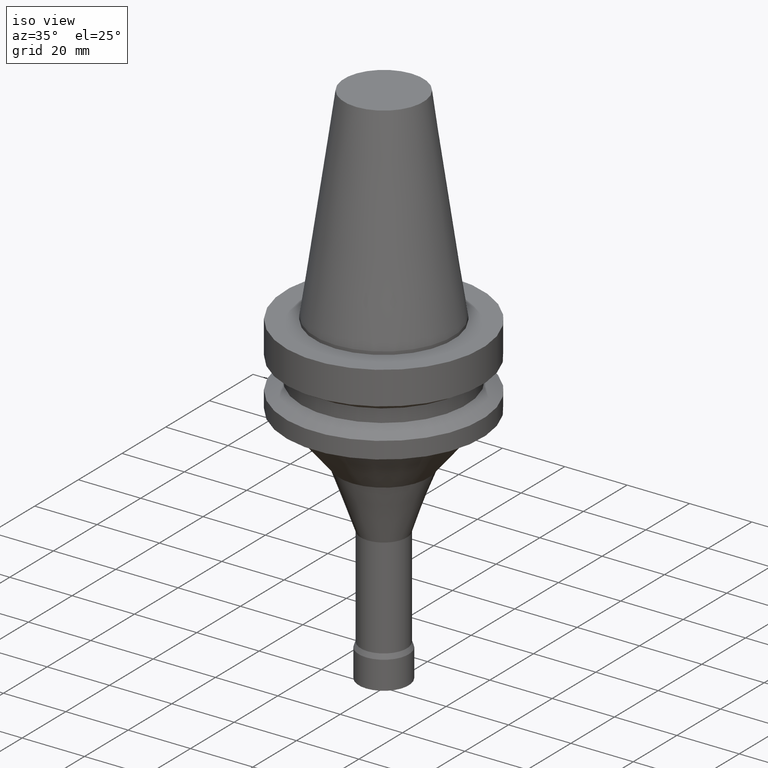
[diagram: clean part render]
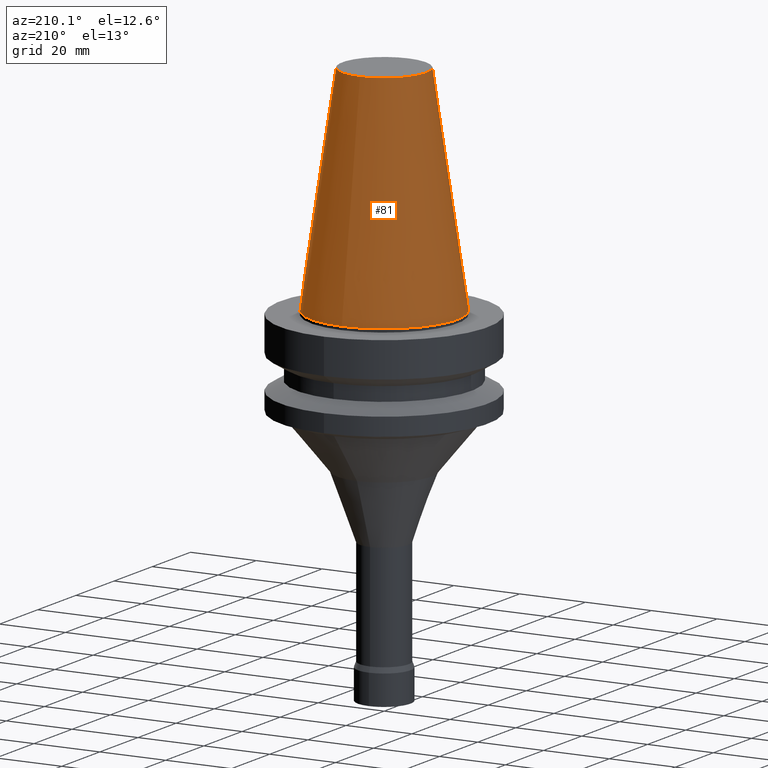
[diagram: tour spotlight — one face highlighted and labeled with its STEP entity id]
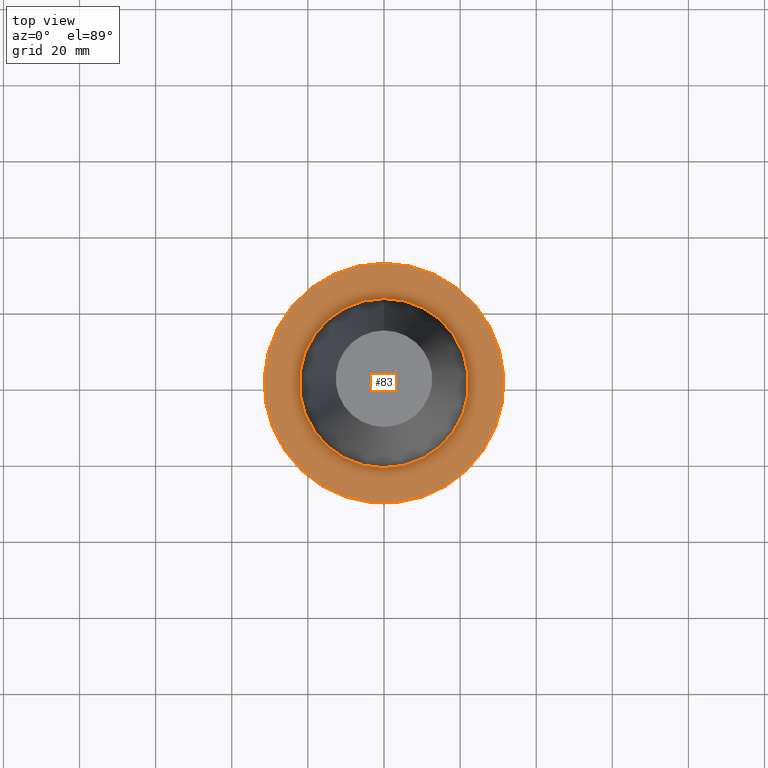
[diagram: tour spotlight — one face highlighted and labeled with its STEP entity id]
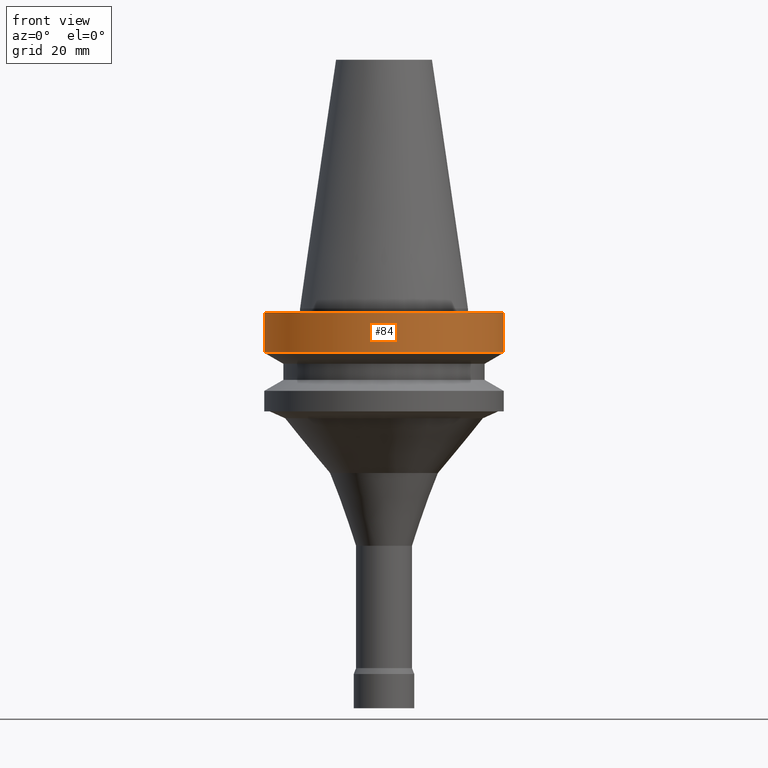
[diagram: tour spotlight — one face highlighted and labeled with its STEP entity id]
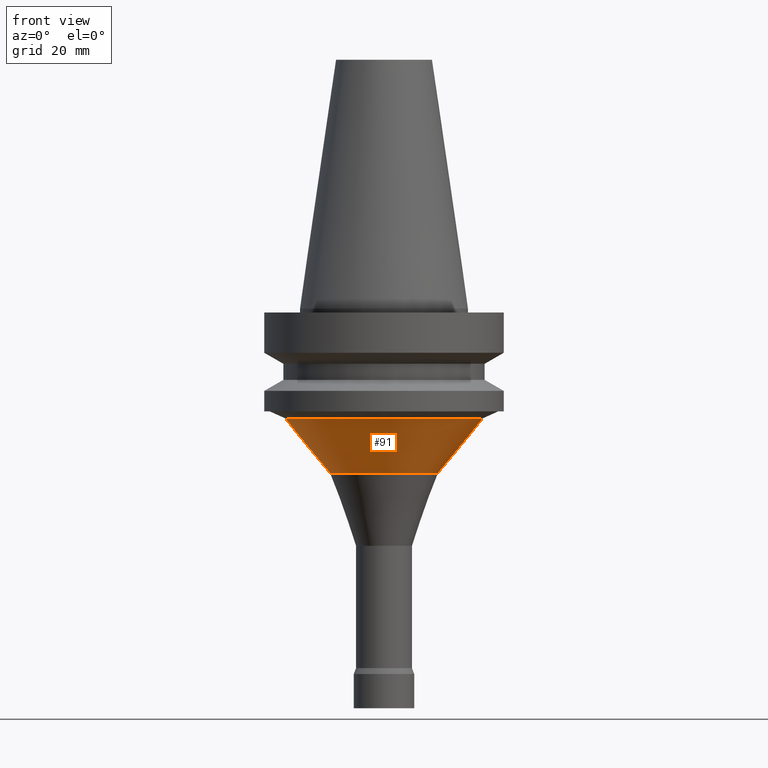
[diagram: tour spotlight — one face highlighted and labeled with its STEP entity id]
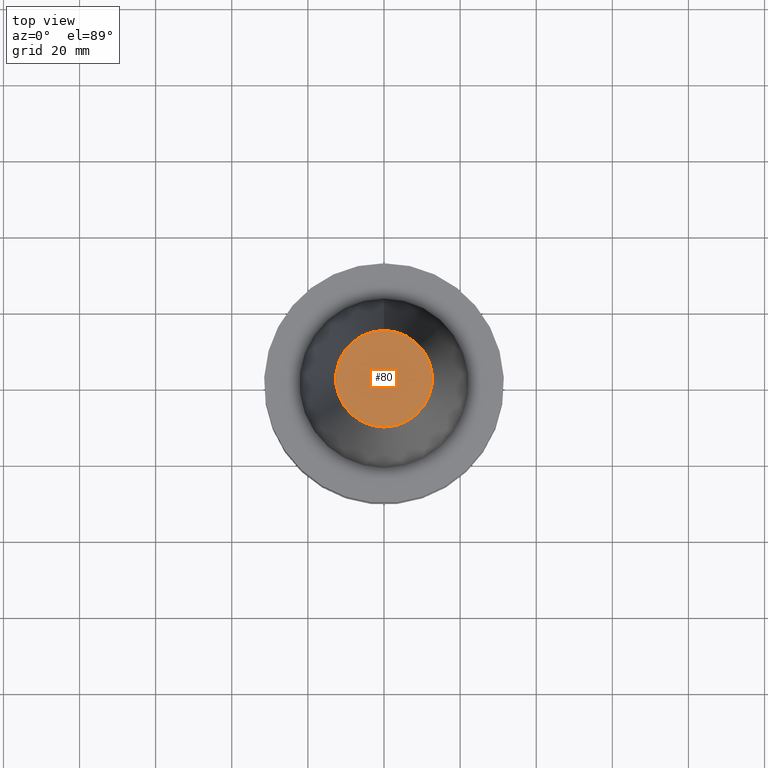
[diagram: tour spotlight — one face highlighted and labeled with its STEP entity id]
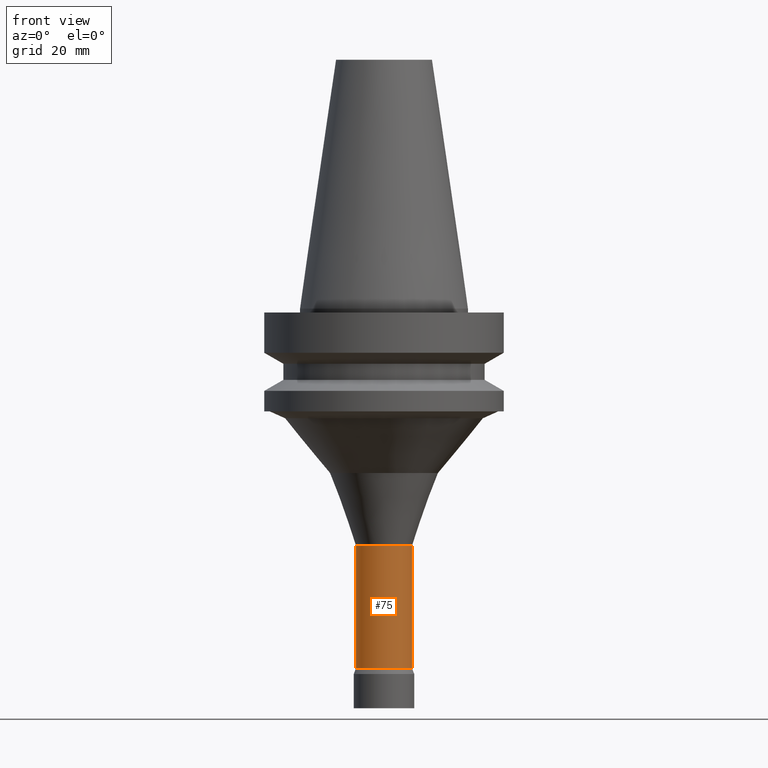
[diagram: tour spotlight — one face highlighted and labeled with its STEP entity id]
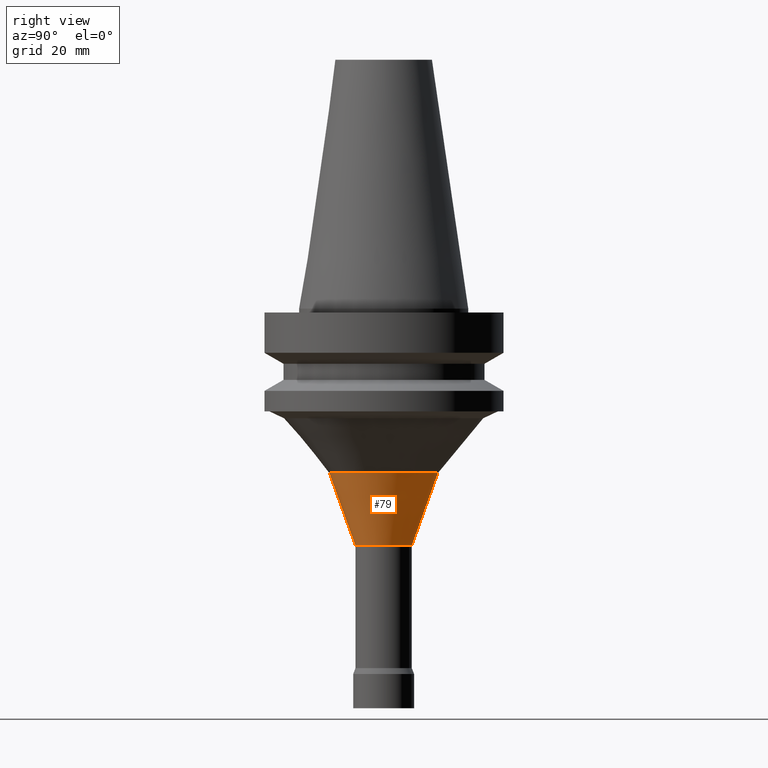
[diagram: tour spotlight — one face highlighted and labeled with its STEP entity id]
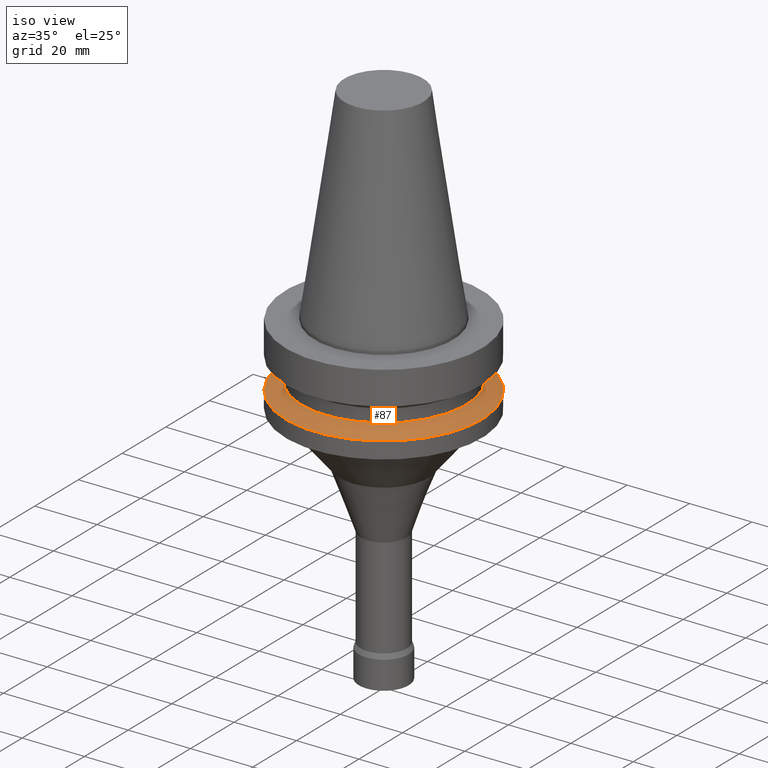
[diagram: tour spotlight — one face highlighted and labeled with its STEP entity id]
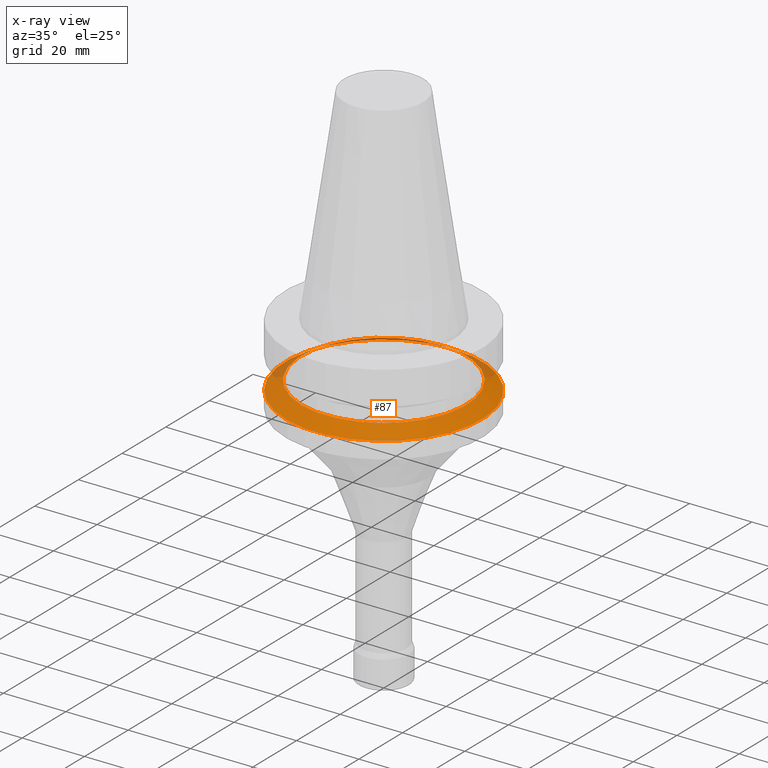
[diagram: x-ray of the same camera — body ghosted, this tour face saturated]
A machine part: a face-by-face anatomy tour. The part has 17 B-rep faces; the first image is the clean iso view, then the 8 largest visible faces are spotlighted one at a time (largest first), each with its STEP entity span.

Face 1 — auxiliary view, entity #81. In plain terms, the highlighted conical surface has half-angle 8.297 deg.
Definition (entity closure, byte-faithful):
#81=ADVANCED_FACE('',(#109,#110),#111,.T.);
#109=FACE_BOUND('',#158,.T.);
#110=FACE_BOUND('',#159,.T.);
#111=CONICAL_SURFACE('',#160,17.4562500026599,0.144812498159292);
#158=EDGE_LOOP('',(#219));
#159=EDGE_LOOP('',(#220));
#160=AXIS2_PLACEMENT_3D('',#221,#222,#223);
#219=ORIENTED_EDGE('',*,*,#280,.F.);
#220=ORIENTED_EDGE('',*,*,#279,.T.);
#221=CARTESIAN_POINT('',(-2.00229751660592E-015,-4.00459503321185E-015,32.7));
#222=DIRECTION('',(6.12323399573677E-017,1.22464679914735E-016,-1.0));
#223=DIRECTION('',(-1.23259516440783E-032,1.0,1.22464679914735E-016));
#279=EDGE_CURVE('',#300,#300,#301,.T.);
#280=EDGE_CURVE('',#302,#302,#303,.T.);
#300=VERTEX_POINT('',#332);
#301=CIRCLE('',#333,12.6875000053197);
#302=VERTEX_POINT('',#334);
#303=CIRCLE('',#335,22.225);
#332=CARTESIAN_POINT('',(-4.00459503321185E-015,12.6875000053197,65.4));
#333=AXIS2_PLACEMENT_3D('',#369,#370,#371);
#334=CARTESIAN_POINT('',(-2.67821041293904E-031,22.225,2.62177751110499E-015));
#335=AXIS2_PLACEMENT_3D('',#372,#373,#374);
#369=CARTESIAN_POINT('',(-4.00459503321185E-015,-8.00919006642369E-015,65.4));
#370=DIRECTION('',(6.12323399573677E-017,1.22464679914735E-016,-1.0));
#371=DIRECTION('',(-1.23259516440783E-032,1.0,1.22464679914735E-016));
#372=CARTESIAN_POINT('',(0.0,0.0,0.0));
#373=DIRECTION('',(6.12323399573677E-017,1.22464679914735E-016,-1.0));
#374=DIRECTION('',(-1.23259516440783E-032,1.0,1.22464679914735E-016));

Face 2 — top view, entity #83. In plain terms, the highlighted planar face has unit normal (-0, -0, 1).
Definition (entity closure, byte-faithful):
#83=ADVANCED_FACE('',(#115,#116),#117,.T.);
#115=FACE_OUTER_BOUND('',#164,.T.);
#116=FACE_BOUND('',#165,.T.);
#117=PLANE('',#166);
#164=EDGE_LOOP('',(#229));
#165=EDGE_LOOP('',(#230));
#166=AXIS2_PLACEMENT_3D('',#231,#232,#233);
#229=ORIENTED_EDGE('',*,*,#282,.F.);
#230=ORIENTED_EDGE('',*,*,#281,.T.);
#231=CARTESIAN_POINT('',(6.12323399573673E-017,26.8625,-0.999999999999997));
#232=DIRECTION('',(-6.12323399573677E-017,-1.22464679914735E-016,1.0));
#233=DIRECTION('',(1.23259516440783E-032,-1.0,-1.22464679914735E-016));
#281=EDGE_CURVE('',#304,#304,#305,.T.);
#282=EDGE_CURVE('',#306,#306,#307,.T.);
#304=VERTEX_POINT('',#336);
#305=CIRCLE('',#337,22.225);
#306=VERTEX_POINT('',#338);
#307=CIRCLE('',#339,31.5);
#336=CARTESIAN_POINT('',(6.12323399573674E-017,22.225,-0.999999999999997));
#337=AXIS2_PLACEMENT_3D('',#375,#376,#377);
#338=CARTESIAN_POINT('',(6.12323399573673E-017,31.5,-0.999999999999996));
#339=AXIS2_PLACEMENT_3D('',#378,#379,#380);
#375=CARTESIAN_POINT('',(6.12323399573677E-017,1.22464679914735E-016,-1.0));
#376=DIRECTION('',(6.12323399573677E-017,1.22464679914735E-016,-1.0));
#377=DIRECTION('',(-1.23259516440783E-032,1.0,1.22464679914735E-016));
#378=CARTESIAN_POINT('',(6.12323399573677E-017,1.22464679914735E-016,-1.0));
#379=DIRECTION('',(6.12323399573677E-017,1.22464679914735E-016,-1.0));
#380=DIRECTION('',(-1.23259516440783E-032,1.0,1.22464679914735E-016));

Face 3 — front view, entity #84. In plain terms, the highlighted cylindrical surface (bore or boss wall) has radius 31.5 mm, axis along (-0, -0, 1).
Definition (entity closure, byte-faithful):
#84=ADVANCED_FACE('',(#118,#119),#120,.T.);
#118=FACE_BOUND('',#167,.T.);
#119=FACE_BOUND('',#168,.T.);
#120=CYLINDRICAL_SURFACE('',#169,31.5);
#167=EDGE_LOOP('',(#234));
#168=EDGE_LOOP('',(#235));
#169=AXIS2_PLACEMENT_3D('',#236,#237,#238);
#234=ORIENTED_EDGE('',*,*,#283,.F.);
#235=ORIENTED_EDGE('',*,*,#282,.T.);
#236=CARTESIAN_POINT('',(3.85763741731416E-016,7.71527483462832E-016,-6.3));
#237=DIRECTION('',(-6.12323399573677E-017,-1.22464679914735E-016,1.0));
#238=DIRECTION('',(-1.23259516440783E-032,1.0,1.22464679914735E-016));
#282=EDGE_CURVE('',#306,#306,#307,.T.);
#283=EDGE_CURVE('',#308,#308,#309,.T.);
#306=VERTEX_POINT('',#338);
#307=CIRCLE('',#339,31.5);
#308=VERTEX_POINT('',#340);
#309=CIRCLE('',#341,31.5);
#338=CARTESIAN_POINT('',(6.12323399573673E-017,31.5,-0.999999999999996));
#339=AXIS2_PLACEMENT_3D('',#378,#379,#380);
#340=CARTESIAN_POINT('',(7.10295143505464E-016,31.5,-11.6));
#341=AXIS2_PLACEMENT_3D('',#381,#382,#383);
#378=CARTESIAN_POINT('',(6.12323399573677E-017,1.22464679914735E-016,-1.0));
#379=DIRECTION('',(6.12323399573677E-017,1.22464679914735E-016,-1.0));
#380=DIRECTION('',(-1.23259516440783E-032,1.0,1.22464679914735E-016));
#381=CARTESIAN_POINT('',(7.10295143505465E-016,1.42059028701093E-015,-11.6));
#382=DIRECTION('',(6.12323399573677E-017,1.22464679914735E-016,-1.0));
#383=DIRECTION('',(-1.23259516440783E-032,1.0,1.22464679914735E-016));

Face 4 — front view, entity #91. In plain terms, the highlighted conical surface has half-angle 39.569 deg.
Definition (entity closure, byte-faithful):
#91=ADVANCED_FACE('',(#139,#140),#141,.T.);
#139=FACE_BOUND('',#188,.T.);
#140=FACE_BOUND('',#189,.T.);
#141=CONICAL_SURFACE('',#190,20.20989178,0.690600984250629);
#188=EDGE_LOOP('',(#269));
#189=EDGE_LOOP('',(#270));
#190=AXIS2_PLACEMENT_3D('',#271,#272,#273);
#269=ORIENTED_EDGE('',*,*,#278,.F.);
#270=ORIENTED_EDGE('',*,*,#289,.T.);
#271=CARTESIAN_POINT('',(2.2042520690848E-015,4.4085041381696E-015,-35.998168135));
#272=DIRECTION('',(-6.12323399573677E-017,-1.22464679914735E-016,1.0));
#273=DIRECTION('',(-1.23259516440783E-032,1.0,1.22464679914735E-016));
#278=EDGE_CURVE('',#298,#298,#299,.T.);
#289=EDGE_CURVE('',#320,#320,#321,.T.);
#298=VERTEX_POINT('',#330);
#299=CIRCLE('',#331,14.27410019);
#320=VERTEX_POINT('',#352);
#321=CIRCLE('',#353,26.14568337);
#330=CARTESIAN_POINT('',(2.64409443803487E-015,14.27410019,-43.18133914));
#331=AXIS2_PLACEMENT_3D('',#366,#367,#368);
#352=CARTESIAN_POINT('',(1.76440970013473E-015,26.14568337,-28.81499713));
#353=AXIS2_PLACEMENT_3D('',#399,#400,#401);
#366=CARTESIAN_POINT('',(2.64409443803487E-015,5.28818887606973E-015,-43.18133914));
#367=DIRECTION('',(6.12323399573677E-017,1.22464679914735E-016,-1.0));
#368=DIRECTION('',(-1.23259516440783E-032,1.0,1.22464679914735E-016));
#399=CARTESIAN_POINT('',(1.76440970013473E-015,3.52881940026947E-015,-28.81499713));
#400=DIRECTION('',(6.12323399573677E-017,1.22464679914735E-016,-1.0));
#401=DIRECTION('',(-1.23259516440783E-032,1.0,1.22464679914735E-016));

Face 5 — top view, entity #80. In plain terms, the highlighted planar face has unit normal (-0, -0, 1).
Definition (entity closure, byte-faithful):
#80=ADVANCED_FACE('',(#107),#108,.T.);
#107=FACE_OUTER_BOUND('',#156,.T.);
#108=PLANE('',#157);
#156=EDGE_LOOP('',(#215));
#157=AXIS2_PLACEMENT_3D('',#216,#217,#218);
#215=ORIENTED_EDGE('',*,*,#279,.F.);
#216=CARTESIAN_POINT('',(-4.00459503321185E-015,6.34375000265984,65.4));
#217=DIRECTION('',(-6.12323399573677E-017,-1.22464679914735E-016,1.0));
#218=DIRECTION('',(1.23259516440783E-032,-1.0,-1.22464679914735E-016));
#279=EDGE_CURVE('',#300,#300,#301,.T.);
#300=VERTEX_POINT('',#332);
#301=CIRCLE('',#333,12.6875000053197);
#332=CARTESIAN_POINT('',(-4.00459503321185E-015,12.6875000053197,65.4));
#333=AXIS2_PLACEMENT_3D('',#369,#370,#371);
#369=CARTESIAN_POINT('',(-4.00459503321185E-015,-8.00919006642369E-015,65.4));
#370=DIRECTION('',(6.12323399573677E-017,1.22464679914735E-016,-1.0));
#371=DIRECTION('',(-1.23259516440783E-032,1.0,1.22464679914735E-016));

Face 6 — front view, entity #75. In plain terms, the highlighted cylindrical surface (bore or boss wall) has radius 7.4 mm, axis along (-0, -0, 1).
Definition (entity closure, byte-faithful):
#75=ADVANCED_FACE('',(#93,#94),#95,.T.);
#93=FACE_BOUND('',#142,.T.);
#94=FACE_BOUND('',#143,.T.);
#95=CYLINDRICAL_SURFACE('',#144,7.4);
#142=EDGE_LOOP('',(#191));
#143=EDGE_LOOP('',(#192));
#144=AXIS2_PLACEMENT_3D('',#193,#194,#195);
#191=ORIENTED_EDGE('',*,*,#274,.F.);
#192=ORIENTED_EDGE('',*,*,#275,.T.);
#193=CARTESIAN_POINT('',(4.79883545486497E-015,9.59767090972994E-015,-78.37093043));
#194=DIRECTION('',(-6.12323399573677E-017,-1.22464679914735E-016,1.0));
#195=DIRECTION('',(-1.23259516440783E-032,1.0,1.22464679914735E-016));
#274=EDGE_CURVE('',#290,#290,#291,.T.);
#275=EDGE_CURVE('',#292,#292,#293,.T.);
#290=VERTEX_POINT('',#322);
#291=CIRCLE('',#323,7.4);
#292=VERTEX_POINT('',#324);
#293=CIRCLE('',#325,7.4);
#322=CARTESIAN_POINT('',(5.78342540130121E-015,7.40000000000001,-94.45050451));
#323=AXIS2_PLACEMENT_3D('',#354,#355,#356);
#324=CARTESIAN_POINT('',(3.81424550842873E-015,7.40000000000001,-62.29135635));
#325=AXIS2_PLACEMENT_3D('',#357,#358,#359);
#354=CARTESIAN_POINT('',(5.78342540130121E-015,1.15668508026024E-014,-94.45050451));
#355=DIRECTION('',(6.12323399573677E-017,1.22464679914735E-016,-1.0));
#356=DIRECTION('',(-1.23259516440783E-032,1.0,1.22464679914735E-016));
#357=CARTESIAN_POINT('',(3.81424550842873E-015,7.62849101685747E-015,-62.29135635));
#358=DIRECTION('',(6.12323399573677E-017,1.22464679914735E-016,-1.0));
#359=DIRECTION('',(-1.23259516440783E-032,1.0,1.22464679914735E-016));

Face 7 — right view, entity #79. In plain terms, the highlighted conical surface has half-angle 19.784 deg.
Definition (entity closure, byte-faithful):
#79=ADVANCED_FACE('',(#104,#105),#106,.T.);
#104=FACE_BOUND('',#153,.T.);
#105=FACE_BOUND('',#154,.T.);
#106=CONICAL_SURFACE('',#155,10.837050095,0.345300492153558);
#153=EDGE_LOOP('',(#210));
#154=EDGE_LOOP('',(#211));
#155=AXIS2_PLACEMENT_3D('',#212,#213,#214);
#210=ORIENTED_EDGE('',*,*,#275,.F.);
#211=ORIENTED_EDGE('',*,*,#278,.T.);
#212=CARTESIAN_POINT('',(3.2291699732318E-015,6.4583399464636E-015,-52.736347745));
#213=DIRECTION('',(-6.12323399573677E-017,-1.22464679914735E-016,1.0));
#214=DIRECTION('',(-1.23259516440783E-032,1.0,1.22464679914735E-016));
#275=EDGE_CURVE('',#292,#292,#293,.T.);
#278=EDGE_CURVE('',#298,#298,#299,.T.);
#292=VERTEX_POINT('',#324);
#293=CIRCLE('',#325,7.4);
#298=VERTEX_POINT('',#330);
#299=CIRCLE('',#331,14.27410019);
#324=CARTESIAN_POINT('',(3.81424550842873E-015,7.40000000000001,-62.29135635));
#325=AXIS2_PLACEMENT_3D('',#357,#358,#359);
#330=CARTESIAN_POINT('',(2.64409443803487E-015,14.27410019,-43.18133914));
#331=AXIS2_PLACEMENT_3D('',#366,#367,#368);
#357=CARTESIAN_POINT('',(3.81424550842873E-015,7.62849101685747E-015,-62.29135635));
#358=DIRECTION('',(6.12323399573677E-017,1.22464679914735E-016,-1.0));
#359=DIRECTION('',(-1.23259516440783E-032,1.0,1.22464679914735E-016));
#366=CARTESIAN_POINT('',(2.64409443803487E-015,5.28818887606973E-015,-43.18133914));
#367=DIRECTION('',(6.12323399573677E-017,1.22464679914735E-016,-1.0));
#368=DIRECTION('',(-1.23259516440783E-032,1.0,1.22464679914735E-016));

Face 8 — iso view, entity #87. An x-ray twin of the same camera follows (body ghosted, this face saturated) — the face is partly hidden behind the body. In plain terms, the highlighted conical surface has half-angle 60 deg.
Definition (entity closure, byte-faithful):
#87=ADVANCED_FACE('',(#127,#128),#129,.T.);
#127=FACE_BOUND('',#176,.T.);
#128=FACE_BOUND('',#177,.T.);
#129=CONICAL_SURFACE('',#178,29.0,1.04719755058882);
#176=EDGE_LOOP('',(#249));
#177=EDGE_LOOP('',(#250));
#178=AXIS2_PLACEMENT_3D('',#251,#252,#253);
#249=ORIENTED_EDGE('',*,*,#286,.F.);
#250=ORIENTED_EDGE('',*,*,#285,.T.);
#251=CARTESIAN_POINT('',(1.23423727306135E-015,2.46847454612269E-015,-20.156624325));
#252=DIRECTION('',(6.12323399573677E-017,1.22464679914735E-016,-1.0));
#253=DIRECTION('',(-1.23259516440783E-032,1.0,1.22464679914735E-016));
#285=EDGE_CURVE('',#312,#312,#313,.T.);
#286=EDGE_CURVE('',#314,#314,#315,.T.);
#312=VERTEX_POINT('',#344);
#313=CIRCLE('',#345,26.5);
#314=VERTEX_POINT('',#346);
#315=CIRCLE('',#347,31.5);
#344=CARTESIAN_POINT('',(1.14585600304355E-015,26.5,-18.71324865));
#345=AXIS2_PLACEMENT_3D('',#387,#388,#389);
#346=CARTESIAN_POINT('',(1.32261854307914E-015,31.5,-21.6));
#347=AXIS2_PLACEMENT_3D('',#390,#391,#392);
#387=CARTESIAN_POINT('',(1.14585600304355E-015,2.2917120060871E-015,-18.71324865));
#388=DIRECTION('',(6.12323399573677E-017,1.22464679914735E-016,-1.0));
#389=DIRECTION('',(-1.23259516440783E-032,1.0,1.22464679914735E-016));
#390=CARTESIAN_POINT('',(1.32261854307914E-015,2.64523708615828E-015,-21.6));
#391=DIRECTION('',(6.12323399573677E-017,1.22464679914735E-016,-1.0));
#392=DIRECTION('',(-1.23259516440783E-032,1.0,1.22464679914735E-016));